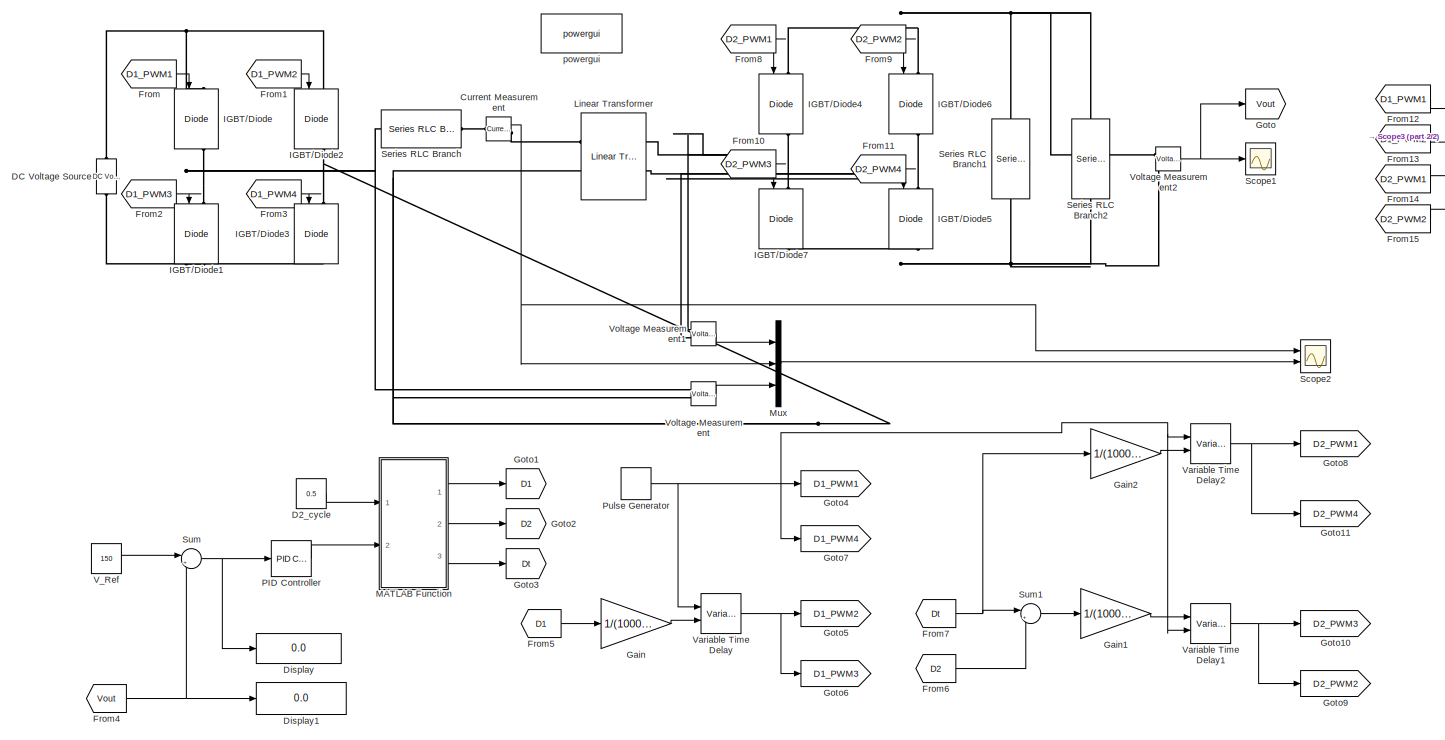
[diagram: root canvas - part 1/2, most of the canvas]
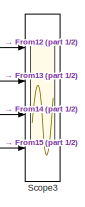
[diagram: root canvas - part 2/2, top right region]
MODEL slx_2cdec210ad7b
KIND model
CONFIG AbsTol = auto
CONFIG EnableMultiTasking = off
CONFIG FixedStep = auto
CONFIG MaxStep = auto
CONFIG MinStep = auto
CONFIG RelTol = 1e-3
CONFIG SampleTimeConstraint = Unconstrained
CONFIG SolverName = ode23t
CONFIG StartTime = 0.0
CONFIG StopTime = 0.1
BLOCK [Reference] Current Measurement  REF=spsCurrentMeasurementLib/Current Measurement
  Ports = [0, 1, 0, 0, 0, 1, 1]
  SourceBlock = spsCurrentMeasurementLib/Current Measurement
  SourceProductBaseCode = PS
  SourceType = Current Measurement
  UserDataPersistent = on
BLOCK [Constant] D2_cycle
  Value = 0.5
BLOCK [Reference] DC Voltage Source  REF=spsDCVoltageSourceLib/DC Voltage Source
  NameLocation = right
  Ports = [0, 0, 0, 0, 0, 1, 1]
  SourceBlock = spsDCVoltageSourceLib/DC Voltage Source
  SourceProductBaseCode = PS
  SourceType = DC Voltage Source
BLOCK [Display] Display
  Decimation = 1
  Ports = [1]
BLOCK [Display] Display1
  Decimation = 1
  Ports = [1]
BLOCK [From] From
  GotoTag = D1_PWM1
BLOCK [From] From1
  GotoTag = D1_PWM2
BLOCK [From] From10
  GotoTag = D2_PWM3
BLOCK [From] From11
  GotoTag = D2_PWM4
BLOCK [From] From12
  GotoTag = D1_PWM1
BLOCK [From] From13
  GotoTag = D1_PWM2
BLOCK [From] From14
  GotoTag = D2_PWM1
BLOCK [From] From15
  GotoTag = D2_PWM2
BLOCK [From] From2
  GotoTag = D1_PWM3
BLOCK [From] From3
  GotoTag = D1_PWM4
BLOCK [From] From4
  GotoTag = Vout
BLOCK [From] From5
  GotoTag = D1
BLOCK [From] From6
  GotoTag = D2
BLOCK [From] From7
  GotoTag = Dt
BLOCK [From] From8
  GotoTag = D2_PWM1
BLOCK [From] From9
  GotoTag = D2_PWM2
BLOCK [Gain] Gain
  Gain = 1/(10000*pi)
BLOCK [Gain] Gain1
  Gain = 1/(10000*pi)
BLOCK [Gain] Gain2
  Gain = 1/(10000*pi)
BLOCK [Goto] Goto
  GotoTag = Vout
BLOCK [Goto] Goto1
  GotoTag = D1
BLOCK [Goto] Goto10
  GotoTag = D2_PWM3
BLOCK [Goto] Goto11
  GotoTag = D2_PWM4
BLOCK [Goto] Goto2
  GotoTag = D2
BLOCK [Goto] Goto3
  GotoTag = Dt
BLOCK [Goto] Goto4
  GotoTag = D1_PWM1
BLOCK [Goto] Goto5
  GotoTag = D1_PWM2
BLOCK [Goto] Goto6
  GotoTag = D1_PWM3
BLOCK [Goto] Goto7
  GotoTag = D1_PWM4
BLOCK [Goto] Goto8
  GotoTag = D2_PWM1
BLOCK [Goto] Goto9
  GotoTag = D2_PWM2
BLOCK [Reference] IGBT//Diode  REF=spsIGBTDiodeLib/IGBT//Diode
  NameLocation = left
  Ports = [1, 1, 0, 0, 0, 1, 1]
  SourceBlock = spsIGBTDiodeLib/IGBT//Diode
  SourceProductBaseCode = PS
  SourceType = IGBT/Diode
BLOCK [Reference] IGBT//Diode1  REF=spsIGBTDiodeLib/IGBT//Diode
  NameLocation = left
  Ports = [1, 1, 0, 0, 0, 1, 1]
  SourceBlock = spsIGBTDiodeLib/IGBT//Diode
  SourceProductBaseCode = PS
  SourceType = IGBT/Diode
BLOCK [Reference] IGBT//Diode2  REF=spsIGBTDiodeLib/IGBT//Diode
  NameLocation = left
  Ports = [1, 1, 0, 0, 0, 1, 1]
  SourceBlock = spsIGBTDiodeLib/IGBT//Diode
  SourceProductBaseCode = PS
  SourceType = IGBT/Diode
BLOCK [Reference] IGBT//Diode3  REF=spsIGBTDiodeLib/IGBT//Diode
  NameLocation = left
  Ports = [1, 1, 0, 0, 0, 1, 1]
  SourceBlock = spsIGBTDiodeLib/IGBT//Diode
  SourceProductBaseCode = PS
  SourceType = IGBT/Diode
BLOCK [Reference] IGBT//Diode4  REF=spsIGBTDiodeLib/IGBT//Diode
  NameLocation = left
  Ports = [1, 1, 0, 0, 0, 1, 1]
  SourceBlock = spsIGBTDiodeLib/IGBT//Diode
  SourceProductBaseCode = PS
  SourceType = IGBT/Diode
BLOCK [Reference] IGBT//Diode5  REF=spsIGBTDiodeLib/IGBT//Diode
  NameLocation = left
  Ports = [1, 1, 0, 0, 0, 1, 1]
  SourceBlock = spsIGBTDiodeLib/IGBT//Diode
  SourceProductBaseCode = PS
  SourceType = IGBT/Diode
BLOCK [Reference] IGBT//Diode6  REF=spsIGBTDiodeLib/IGBT//Diode
  NameLocation = left
  Ports = [1, 1, 0, 0, 0, 1, 1]
  SourceBlock = spsIGBTDiodeLib/IGBT//Diode
  SourceProductBaseCode = PS
  SourceType = IGBT/Diode
BLOCK [Reference] IGBT//Diode7  REF=spsIGBTDiodeLib/IGBT//Diode
  NameLocation = left
  Ports = [1, 1, 0, 0, 0, 1, 1]
  SourceBlock = spsIGBTDiodeLib/IGBT//Diode
  SourceProductBaseCode = PS
  SourceType = IGBT/Diode
BLOCK [Reference] Linear Transformer  REF=spsLinearTransformerLib/Linear Transformer
  Ports = [0, 0, 0, 0, 0, 2, 2]
  SourceBlock = spsLinearTransformerLib/Linear Transformer
  SourceProductBaseCode = PS
  SourceType = Linear Transformer
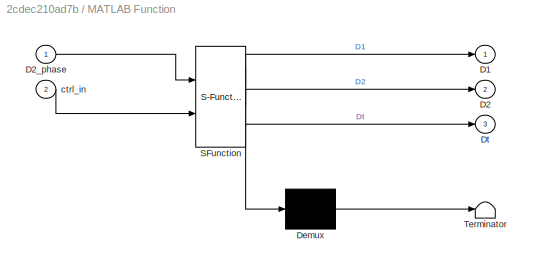
BLOCK [SubSystem] MATLAB Function
  ErrorFcn = Stateflow.Translate.translate
  PermitHierarchicalResolution = ExplicitOnly
  Ports = [2, 3]
  RequestExecContextInheritance = off
  SFBlockType = MATLAB Function
  TreatAsAtomicUnit = on
BLOCK [Demux] MATLAB Function/ Demux 
  Outputs = 1
  Ports = [1, 1]
BLOCK [S-Function] MATLAB Function/ SFunction 
  EnableBusSupport = off
  FunctionName = sf_sfun
  PortCounts = [2 4]
  Ports = [2, 4]
  SFcnIsStateOwnerBlock = off
  SFunctionDeploymentMode = off
  Tag = Stateflow S-Function 2
BLOCK [Terminator] MATLAB Function/ Terminator 
BLOCK [Outport] MATLAB Function/D1
BLOCK [Outport] MATLAB Function/D2
  Port = 2
BLOCK [Inport] MATLAB Function/D2_phase
BLOCK [Outport] MATLAB Function/Dt
  Port = 3
BLOCK [Inport] MATLAB Function/ctrl_in
  Port = 2
BLOCK [Mux] Mux
  DisplayOption = bar
  Inputs = 3
  Ports = [3, 1]
BLOCK [Reference] PID Controller  REF=slpidlib/PID Controller
  Ports = [1, 1]
  SourceBlock = slpidlib/PID Controller
  SourceProductBaseCode = SL
  SourceType = PID 1dof
BLOCK [DiscretePulseGenerator] Pulse Generator
  Period = 1/(10000*pi)
  Ports = [0, 1]
  PulseType = Time based
  PulseWidth = 50
BLOCK [Scope] Scope1
  Floating = off
  NumInputPorts = 1
  Ports = [1]
  ScopeSpecificationString = Simulink.scopes.TimeScopeBlockCfg('CurrentConfiguration', extmgr.ConfigurationSet(extmgr.Configuration('Core','General UI',true),extmgr.Configuration('Core','Source UI',true),extmgr.Configuration('Sources','WiredSimulink',true,'DataLoggingVariableName','ScopeData1'),extmgr.Configuration('Visuals','Time Domain',true,'SerializedDisplays',{struct('MinYLimReal','92.02444','MaxYLimReal','92.63414','YLa...<+1486ch>
BLOCK [Scope] Scope2
  Floating = off
  NumInputPorts = 2
  Ports = [2]
  ScopeSpecificationString = Simulink.scopes.TimeScopeBlockCfg('CurrentConfiguration', extmgr.ConfigurationSet(extmgr.Configuration('Core','General UI',true),extmgr.Configuration('Core','Source UI',true),extmgr.Configuration('Sources','WiredSimulink',true,'DataLoggingVariableName','ScopeData2'),extmgr.Configuration('Visuals','Time Domain',true,'SerializedDisplays',{struct('MinYLimReal','-230.48203','MaxYLimReal','471.61481','...<+2130ch>
BLOCK [Scope] Scope3
  Floating = off
  NumInputPorts = 4
  Ports = [4]
  ScopeSpecificationString = Simulink.scopes.TimeScopeBlockCfg('CurrentConfiguration', extmgr.ConfigurationSet(extmgr.Configuration('Core','General UI',true),extmgr.Configuration('Core','Source UI',true),extmgr.Configuration('Sources','WiredSimulink',true,'DataLoggingVariableName','ScopeData1'),extmgr.Configuration('Visuals','Time Domain',true,'SerializedDisplays',{struct('MinYLimReal','-0.125','MaxYLimReal','1.125','YLabelRe...<+3442ch>
BLOCK [Reference] Series RLC Branch  REF=spsSeriesRLCBranchLib/Series RLC Branch
  Ports = [0, 0, 0, 0, 0, 1, 1]
  SourceBlock = spsSeriesRLCBranchLib/Series RLC Branch
  SourceProductBaseCode = PS
  SourceType = Series RLC Branch
BLOCK [Reference] Series RLC Branch1  REF=spsSeriesRLCBranchLib/Series RLC Branch
  NameLocation = right
  Ports = [0, 0, 0, 0, 0, 1, 1]
  SourceBlock = spsSeriesRLCBranchLib/Series RLC Branch
  SourceProductBaseCode = PS
  SourceType = Series RLC Branch
BLOCK [Reference] Series RLC Branch2  REF=spsSeriesRLCBranchLib/Series RLC Branch
  NameLocation = right
  Ports = [0, 0, 0, 0, 0, 1, 1]
  SourceBlock = spsSeriesRLCBranchLib/Series RLC Branch
  SourceProductBaseCode = PS
  SourceType = Series RLC Branch
BLOCK [Sum] Sum
  Inputs = |+-
  Ports = [2, 1]
BLOCK [Sum] Sum1
  Inputs = |++
  Ports = [2, 1]
BLOCK [Constant] V_Ref
  Value = 150
BLOCK [VariableTransportDelay] Variable Time Delay
  MaximumDelay = 10
  Ports = [2, 1]
BLOCK [VariableTransportDelay] Variable Time Delay1
  MaximumDelay = 10
  Ports = [2, 1]
BLOCK [VariableTransportDelay] Variable Time Delay2
  MaximumDelay = 10
  Ports = [2, 1]
BLOCK [Reference] Voltage Measurement  REF=spsVoltageMeasurementLib/Voltage Measurement
  Ports = [0, 1, 0, 0, 0, 2]
  SourceBlock = spsVoltageMeasurementLib/Voltage Measurement
  SourceProductBaseCode = PS
  SourceType = Voltage Measurement
  UserDataPersistent = on
BLOCK [Reference] Voltage Measurement1  REF=spsVoltageMeasurementLib/Voltage Measurement
  Ports = [0, 1, 0, 0, 0, 2]
  SourceBlock = spsVoltageMeasurementLib/Voltage Measurement
  SourceProductBaseCode = PS
  SourceType = Voltage Measurement
  UserDataPersistent = on
BLOCK [Reference] Voltage Measurement2  REF=spsVoltageMeasurementLib/Voltage Measurement
  Ports = [0, 1, 0, 0, 0, 2]
  SourceBlock = spsVoltageMeasurementLib/Voltage Measurement
  SourceProductBaseCode = PS
  SourceType = Voltage Measurement
  UserDataPersistent = on
BLOCK [Reference] powergui  REF=spspowerguiLib/powergui
  Ports = []
  Priority = 1
  SourceBlock = spspowerguiLib/powergui
  SourceProductBaseCode = PS
  SourceType = PSB option menu block
NET Current Measurement:1 -> Mux:2, Scope2:1
LINE D2_cycle:1 -> MATLAB Function:1
LINE From10:1 -> IGBT//Diode7:1
LINE From11:1 -> IGBT//Diode5:1
LINE From12:1 -> Scope3:1
LINE From13:1 -> Scope3:2
LINE From14:1 -> Scope3:3
LINE From15:1 -> Scope3:4
LINE From1:1 -> IGBT//Diode2:1
LINE From2:1 -> IGBT//Diode1:1
LINE From3:1 -> IGBT//Diode3:1
NET From4:1 -> Display1:1, Sum:2
LINE From5:1 -> Gain:1
LINE From6:1 -> Sum1:2
NET From7:1 -> Gain2:1, Sum1:1
LINE From8:1 -> IGBT//Diode4:1
LINE From9:1 -> IGBT//Diode6:1
LINE From:1 -> IGBT//Diode:1
LINE Gain1:1 -> Variable Time Delay1:1
LINE Gain2:1 -> Variable Time Delay2:2
LINE Gain:1 -> Variable Time Delay:2
LINE MATLAB Function:1 -> Goto1:1
LINE MATLAB Function:2 -> Goto2:1
LINE MATLAB Function:3 -> Goto3:1
LINE Mux:1 -> Scope2:2
LINE PID Controller:1 -> MATLAB Function:2
NET Pulse Generator:1 -> Goto4:1, Goto7:1, Variable Time Delay1:2, Variable Time Delay2:1, Variable Time Delay:1
LINE Sum1:1 -> Gain1:1
NET Sum:1 -> Display:1, PID Controller:1
LINE V_Ref:1 -> Sum:1
NET Variable Time Delay1:1 -> Goto10:1, Goto9:1
NET Variable Time Delay2:1 -> Goto11:1, Goto8:1
NET Variable Time Delay:1 -> Goto5:1, Goto6:1
LINE Voltage Measurement1:1 -> Mux:1
NET Voltage Measurement2:1 -> Goto:1, Scope1:1
LINE Voltage Measurement:1 -> Mux:3
PLINE Current Measurement:LConn1 -- Series RLC Branch:RConn1
PLINE Current Measurement:RConn1 -- Linear Transformer:LConn1
PNET net1: DC Voltage Source:LConn1 -- IGBT//Diode1:RConn1 -- IGBT//Diode3:RConn1
PNET net2: DC Voltage Source:RConn1 -- IGBT//Diode2:LConn1 -- IGBT//Diode:LConn1
PNET net3: IGBT//Diode1:LConn1 -- IGBT//Diode:RConn1 -- Series RLC Branch:LConn1 -- Voltage Measurement:LConn1
PNET net4: IGBT//Diode2:RConn1 -- IGBT//Diode3:LConn1 -- Linear Transformer:LConn2 -- Voltage Measurement:LConn2
PNET net5: IGBT//Diode4:LConn1 -- IGBT//Diode6:LConn1 -- Series RLC Branch1:RConn1 -- Series RLC Branch2:RConn1 -- Voltage Measurement2:LConn1
PNET net6: IGBT//Diode4:RConn1 -- IGBT//Diode7:LConn1 -- Linear Transformer:RConn1 -- Voltage Measurement1:LConn1
PNET net7: IGBT//Diode5:LConn1 -- IGBT//Diode6:RConn1 -- Linear Transformer:RConn2 -- Voltage Measurement1:LConn2
PNET net8: IGBT//Diode5:RConn1 -- IGBT//Diode7:RConn1 -- Series RLC Branch1:LConn1 -- Series RLC Branch2:LConn1 -- Voltage Measurement2:LConn2
note: NET lines group one-source signal fan-out (src -> all destinations, sorted); 1:1 wires keep LINE; PNET lines group multi-terminal physical nets as a canonical sorted terminal list (undirected conserving connections); 2-terminal nets keep the pairwise PLINE form
CHART MATLAB Function states=1 transitions=1
  STATE_LABEL 'eML_blk_kernel()'
  STATE_LABEL 'SCRIPT:\nfunction [D1,D2,Dt] = fcn(D2_phase,ctrl_in)\nD2=D2_phase;\nif 0<=D2_phase<=(ctrl_in+1/((ctrl_in^2)+ctrl_in+1))\n    Dt=ctrl_in/(ctrl_in+1);\n    D1=D2_phase*ctrl_in;\nelseif (ctrl_in+1/((ctrl_in^2)+ctrl_in+1))<=D2_phase<=1\n    Dt=ctrl_in/(ctrl_in+1);\n    D1=1-(1/ctrl_in^2)+((1/ctrl_in^2)*D2_phase);\nelse\n    D1=0;\n    Dt=0;\n    str="Error D2_phase is not between 0~1 "\n    sprintf("%s",str)\nend'
CHART  states=0 transitions=0
